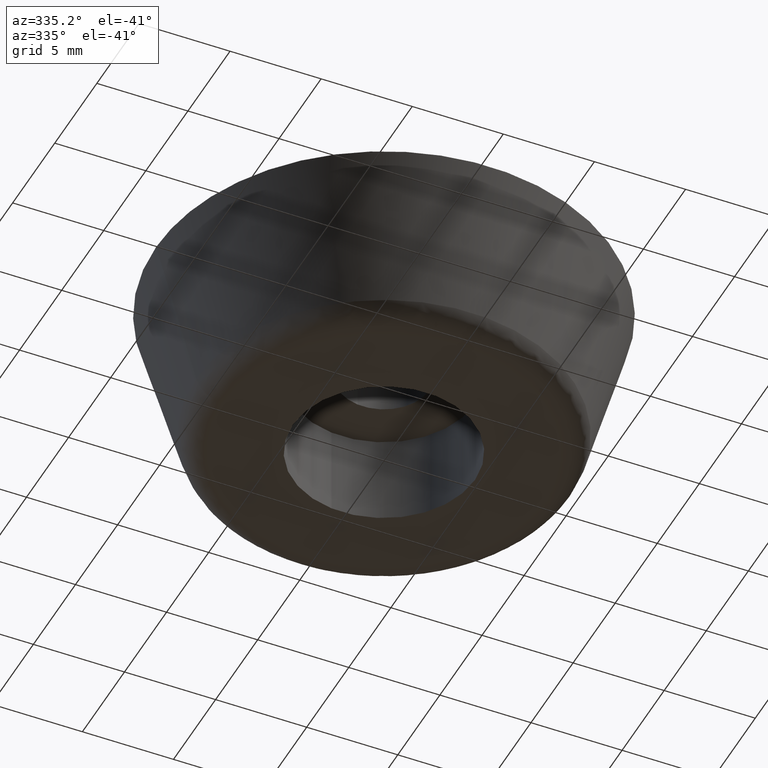
[diagram: clean part render]
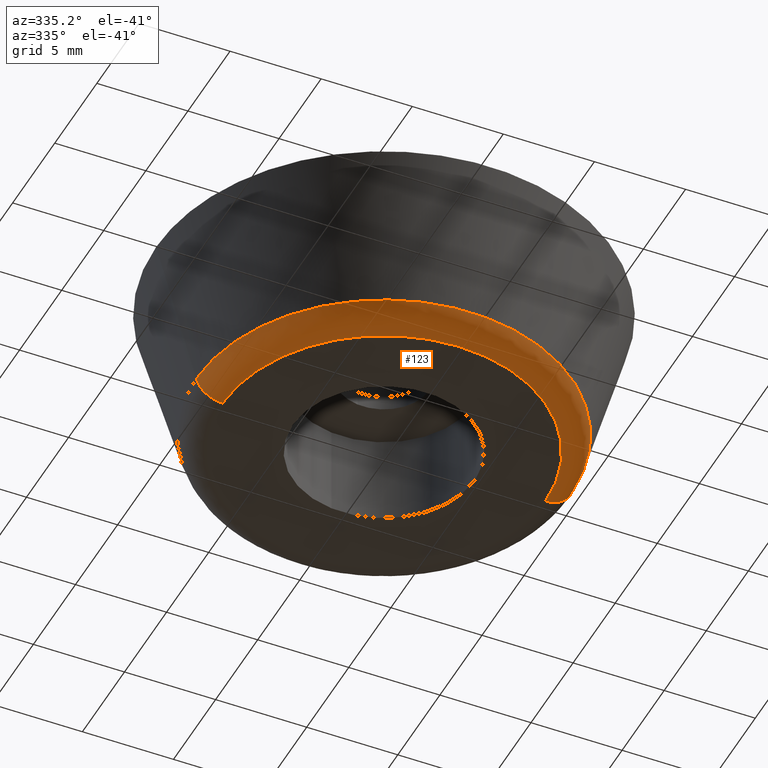
[diagram: same view with one face highlighted and labeled with its STEP entity id]
A machine part, auxiliary view. The second image highlights one B-rep face of the part: STEP entity #123.
In plain terms, the highlighted face is a freeform B-spline surface patch.
Its self-contained STEP definition (entity closure, byte-faithful):
#123=ADVANCED_FACE('',(#249),#248,.T.);
#248=( BOUNDED_SURFACE() B_SPLINE_SURFACE( 2,2,((#420,#421,#422,#423,#424),(#425,#426,#427,#428,#429),(#430,#431,#432,#433,#434),(#435,#436,#437,#438,#439),(#440,#441,#442,#443,#444)), .UNSPECIFIED.,.F.,.F.,.F.) B_SPLINE_SURFACE_WITH_KNOTS((3,2,3),(3,2,3),(0.00000000000E+000,5.00000000000E-001,1.00000000000E+000),(0.00000000000E+000,5.00000000000E-001,1.00000000000E+000), .UNSPECIFIED. ) GEOMETRIC_REPRESENTATION_ITEM() RATIONAL_B_SPLINE_SURFACE(((1.00000000000E+000,7.96129343699E-001,1.00000000000E+000,7.96129343699E-001,1.00000000000E+000),(7.07106781187E-001,5.62948457631E-001,7.07106781187E-001,5.62948457631E-001,7.07106781187E-001),(1.00000000000E+000,7.96129343699E-001,1.00000000000E+000,7.96129343699E-001,1.00000000000E+000),(7.07106781187E-001,5.62948457631E-001,7.07106781187E-001,5.62948457631E-001,7.07106781187E-001),(1.00000000000E+000,7.96129343699E-001,1.00000000000E+000,7.96129343699E-001,1.00000000000E+000))) REPRESENTATION_ITEM('') SURFACE() );
#249=FACE_OUTER_BOUND('',#445,.T.);
#420=CARTESIAN_POINT('',(-7.41459466118E+000,-3.02937695015E-015,1.09853420432E+000));
#421=CARTESIAN_POINT('',(-7.71974305128E+000,-1.42069350784E-014,5.57810377629E-016));
#422=CARTESIAN_POINT('',(-8.85987152564E+000,-1.57745266681E-014,2.22044604925E-016));
#423=CARTESIAN_POINT('',(-1.00000000000E+001,-1.73421182578E-014,2.78905188814E-016));
#424=CARTESIAN_POINT('',(-1.03051483901E+001,-7.00367266934E-015,1.09853420432E+000));
#425=CARTESIAN_POINT('',(-7.41459466118E+000,-7.41459466118E+000,1.09853420432E+000));
#426=CARTESIAN_POINT('',(-7.71974305128E+000,-7.71974305128E+000,7.62886585000E-014));
#427=CARTESIAN_POINT('',(-8.85987152564E+000,-8.85987152564E+000,8.68911483243E-014));
#428=CARTESIAN_POINT('',(-1.00000000000E+001,-1.00000000000E+001,9.80979173469E-014));
#429=CARTESIAN_POINT('',(-1.03051483901E+001,-1.03051483901E+001,1.09853420432E+000));
#430=CARTESIAN_POINT('',(9.74050149100E-015,-7.41459466118E+000,1.09853420432E+000));
#431=CARTESIAN_POINT('',(1.01413728110E-014,-7.71974305128E+000,7.61411165463E-014));
#432=CARTESIAN_POINT('',(1.16391516663E-014,-8.85987152564E+000,8.70414851306E-014));
#433=CARTESIAN_POINT('',(1.31369305216E-014,-1.00000000000E+001,9.81746264627E-014));
#434=CARTESIAN_POINT('',(1.35378018416E-014,-1.03051483901E+001,1.09853420432E+000));
#435=CARTESIAN_POINT('',(7.41459466118E+000,-7.41459466118E+000,1.09853420432E+000));
#436=CARTESIAN_POINT('',(7.71974305128E+000,-7.71974305128E+000,7.62886585000E-014));
#437=CARTESIAN_POINT('',(8.85987152564E+000,-8.85987152564E+000,8.68911483243E-014));
#438=CARTESIAN_POINT('',(1.00000000000E+001,-1.00000000000E+001,9.80979173469E-014));
#439=CARTESIAN_POINT('',(1.03051483901E+001,-1.03051483901E+001,1.09853420432E+000));
#440=CARTESIAN_POINT('',(7.41459466118E+000,1.64516260319E-014,1.09853420432E+000));
#441=CARTESIAN_POINT('',(7.71974305128E+000,6.07581054352E-015,5.57810377629E-016));
#442=CARTESIAN_POINT('',(8.85987152564E+000,7.50377666452E-015,2.22044604925E-016));
#443=CARTESIAN_POINT('',(1.00000000000E+001,8.93174278552E-015,2.78905188814E-016));
#444=CARTESIAN_POINT('',(1.03051483901E+001,2.00719310138E-014,1.09853420432E+000));
#445=EDGE_LOOP('',(#544,#545,#546,#547));
#544=ORIENTED_EDGE('',*,*,#595,.F.);
#545=ORIENTED_EDGE('',*,*,#613,.T.);
#546=ORIENTED_EDGE('',*,*,#615,.F.);
#547=ORIENTED_EDGE('',*,*,#614,.F.);
#595=EDGE_CURVE('',#705,#704,#712,.T.);
#613=EDGE_CURVE('',#705,#830,#838,.T.);
#614=EDGE_CURVE('',#704,#831,#844,.T.);
#615=EDGE_CURVE('',#831,#830,#850,.T.);
#704=VERTEX_POINT('',#952);
#705=VERTEX_POINT('',#953);
#712=CIRCLE('',#961,8.85987152564E+000);
#830=VERTEX_POINT('',#1042);
#831=VERTEX_POINT('',#1043);
#838=(BOUNDED_CURVE() B_SPLINE_CURVE(2,(#1048,#1049,#1050),.UNSPECIFIED.,.F.,.F.) B_SPLINE_CURVE_WITH_KNOTS((3,3),(5.00000000000E-001,1.00000000000E+000),.UNSPECIFIED.) CURVE() GEOMETRIC_REPRESENTATION_ITEM() RATIONAL_B_SPLINE_CURVE((1.00000000000E+000,7.96129343699E-001,1.00000000000E+000)) REPRESENTATION_ITEM('') );
#844=(BOUNDED_CURVE() B_SPLINE_CURVE(3,(#1051,#1052,#1053,#1054),.UNSPECIFIED.,.F.,.F.) B_SPLINE_CURVE_WITH_KNOTS((4,4),(4.99999955872E-001,1.00000000000E+000),.UNSPECIFIED.) CURVE() GEOMETRIC_REPRESENTATION_ITEM() RATIONAL_B_SPLINE_CURVE((1.00000000000E+000,1.00000000000E+000,1.00000000000E+000,1.00000000000E+000)) REPRESENTATION_ITEM('') );
#850=CIRCLE('',#1058,1.03051483901E+001);
#952=CARTESIAN_POINT('',(-8.85987152564E+000,-1.08498549643E-015,0.00000000000E+000));
#953=CARTESIAN_POINT('',(8.85987152564E+000,1.06581410364E-014,0.00000000000E+000));
#958=CARTESIAN_POINT('',(5.44669587257E-015,0.00000000000E+000,0.00000000000E+000));
#959=DIRECTION('',(0.00000000000E+000,0.00000000000E+000,-1.00000000000E+000));
#960=DIRECTION('',(-1.00000000000E+000,-0.00000000000E+000,-0.00000000000E+000));
#961=AXIS2_PLACEMENT_3D('',#958,#959,#960);
#1042=CARTESIAN_POINT('',(1.03051483901E+001,-1.85409396603E-015,1.09853420432E+000));
#1043=CARTESIAN_POINT('',(-1.03051483901E+001,-5.92118946467E-016,1.09853420432E+000));
#1048=CARTESIAN_POINT('',(8.85987152564E+000,9.67381932546E-015,2.22044604925E-016));
#1049=CARTESIAN_POINT('',(1.00000000000E+001,1.13810363838E-014,2.78905188814E-016));
#1050=CARTESIAN_POINT('',(1.03051483901E+001,2.25959644120E-014,1.09853420432E+000));
#1051=CARTESIAN_POINT('',(-8.85987136542E+000,-1.74675087132E-014,8.77871780400E-015));
#1052=CARTESIAN_POINT('',(-9.58836546350E+000,-1.80280053603E-014,4.15631791184E-002));
#1053=CARTESIAN_POINT('',(-1.00701244717E+001,-1.51660971882E-014,4.07741247225E-001));
#1054=CARTESIAN_POINT('',(-1.03051483901E+001,-8.88178419700E-015,1.09853420432E+000));
#1055=CARTESIAN_POINT('',(5.44669587257E-015,0.00000000000E+000,1.09853420432E+000));
#1056=DIRECTION('',(0.00000000000E+000,0.00000000000E+000,1.00000000000E+000));
#1057=DIRECTION('',(1.00000000000E+000,-5.74585560588E-017,-0.00000000000E+000));
#1058=AXIS2_PLACEMENT_3D('',#1055,#1056,#1057);